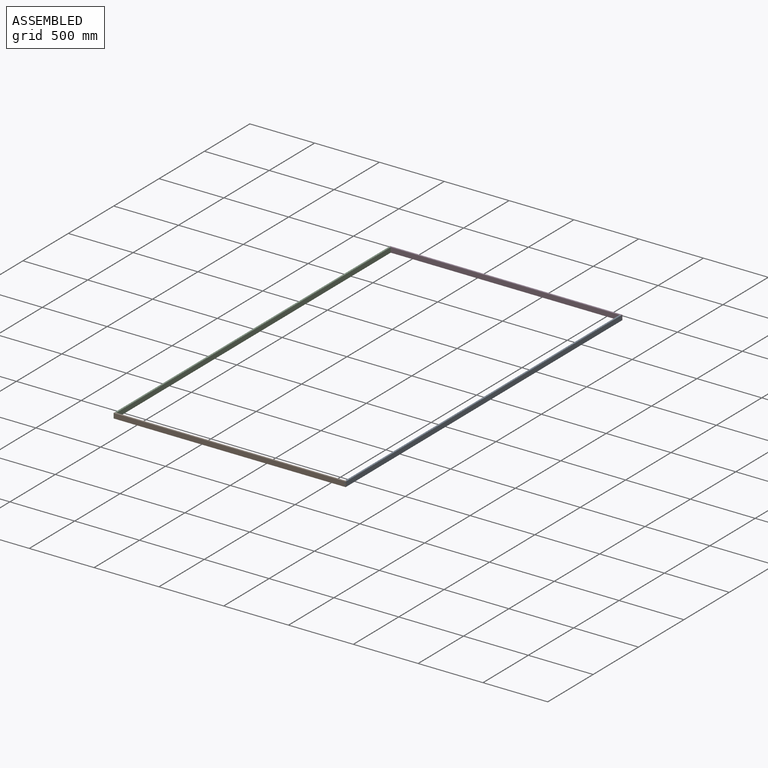
[diagram: assembled view]
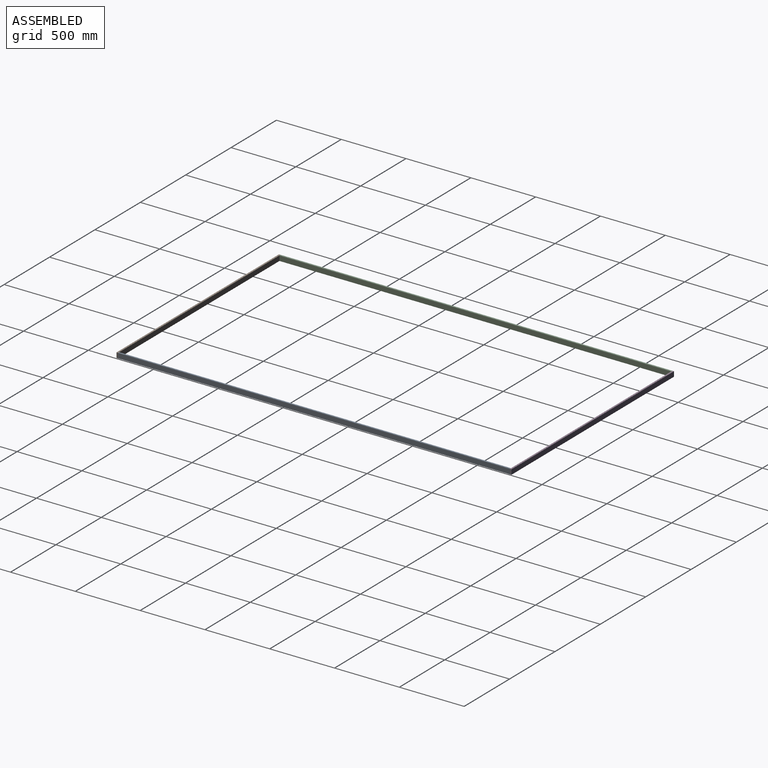
[diagram: assembled view, second angle]
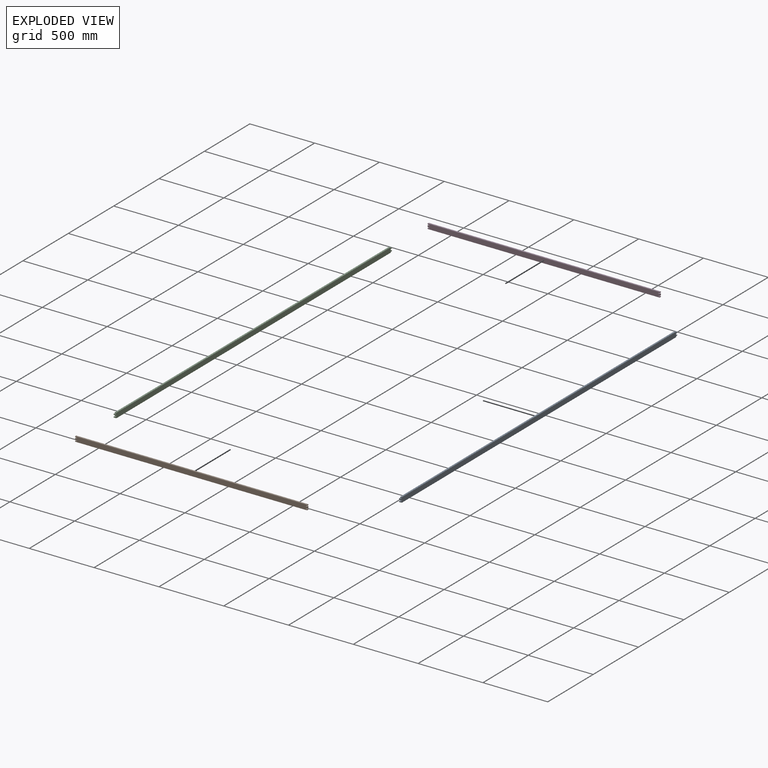
[diagram: exploded view]
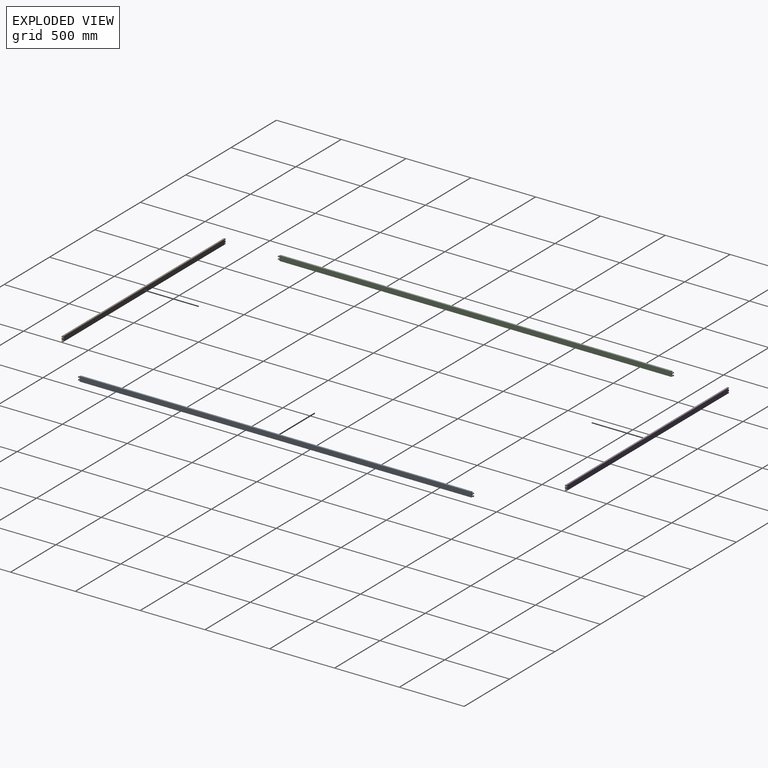
[diagram: exploded view, second angle]
ASSEMBLY  parts=4 mates=9
PART A: 22 faces, bbox 12.7x38.1x3048 mm
  f0: plane 3022.6x12.7mm, normal (0,-1,0), area 38387mm2, adj f6,f7,f8,f15
  f1: plane 3022.6x12.7mm, normal (0,1,0), area 38387mm2, adj f6,f7,f11,f17
  f2: plane 12.7x6.35mm, normal (0,0,1), area 80.6mm2, adj f6,f7,f12,f16
  f3: plane 12.7x6.35mm, normal (0,0,1), area 80.6mm2, adj f6,f7,f10,f14
  f4: plane 12.7x6.35mm, normal (0,0,-1), area 80.6mm2, adj f6,f7,f18,f21
  f5: plane 12.7x6.35mm, normal (0,0,-1), area 80.6mm2, adj f6,f7,f9,f20
  f6: plane 3048x38.1mm, normal (1,0,0), area 115483.6mm2, adj f0,f1,f2,f3,f4,f5,f8,f9
  f7: plane 3048x38.1mm, normal (-1,0,0), area 115483.6mm2, adj f0,f1,f2,f3,f4,f5,f8,f9
  f8: plane 12.7x6.35mm, normal (0,0,-1), area 80.6mm2, adj f0,f6,f7,f9
  f9: plane 12.7x12.7mm, normal (0,-1,0), area 161.3mm2, adj f5,f6,f7,f8
  f10: plane 12.7x12.7mm, normal (0,1,0), area 161.3mm2, adj f3,f6,f7,f11
  f11: plane 12.7x6.35mm, normal (0,0,1), area 80.6mm2, adj f1,f6,f7,f10
  f12: plane 12.7x12.7mm, normal (0,1,0), area 161.3mm2, adj f2,f6,f7,f13
  f13: plane 12.7x12.7mm, normal (0,0,1), area 161.3mm2, adj f6,f7,f12,f14
  f14: plane 12.7x12.7mm, normal (0,-1,0), area 161.3mm2, adj f3,f6,f7,f13
  f15: plane 12.7x6.35mm, normal (0,0,1), area 80.6mm2, adj f0,f6,f7,f16
  f16: plane 12.7x12.7mm, normal (0,-1,0), area 161.3mm2, adj f2,f6,f7,f15
  f17: plane 12.7x6.35mm, normal (0,0,-1), area 80.6mm2, adj f1,f6,f7,f18
  f18: plane 12.7x12.7mm, normal (0,1,0), area 161.3mm2, adj f4,f6,f7,f17
  f19: plane 12.7x12.7mm, normal (0,0,-1), area 161.3mm2, adj f6,f7,f20,f21
  f20: plane 12.7x12.7mm, normal (0,1,0), area 161.3mm2, adj f5,f6,f7,f19
  f21: plane 12.7x12.7mm, normal (0,-1,0), area 161.3mm2, adj f4,f6,f7,f19
PART B: 22 faces, bbox 38.1x1790.7x12.7 mm
  f0: plane 12.7x6.35mm, normal (0,-1,0), area 80.6mm2, adj f4,f5,f7,f16
  f1: plane 12.7x12.7mm, normal (0,-1,0), area 161.3mm2, adj f4,f5,f13,f17
  f2: plane 12.7x12.7mm, normal (0,1,0), area 161.3mm2, adj f4,f5,f12,f19
  f3: plane 12.7x6.35mm, normal (0,1,0), area 80.6mm2, adj f4,f5,f7,f10
  f4: plane 1790.7x38.1mm, normal (0,0,-1), area 67903.1mm2, adj f0,f1,f2,f3,f6,f7,f8,f9
  f5: plane 1790.7x38.1mm, normal (0,0,1), area 67903.1mm2, adj f0,f1,f2,f3,f6,f7,f8,f9
  f6: plane 1790.7x12.7mm, normal (1,0,0), area 22741.9mm2, adj f4,f5,f8,f9
  f7: plane 1790.7x12.7mm, normal (-1,0,0), area 22741.9mm2, adj f0,f3,f4,f5
  f8: plane 12.7x6.35mm, normal (0,-1,0), area 80.6mm2, adj f4,f5,f6,f14
  f9: plane 12.7x6.35mm, normal (0,1,0), area 80.6mm2, adj f4,f5,f6,f21
  f10: plane 12.7x12.7mm, normal (1,0,0), area 161.3mm2, adj f3,f4,f5,f11
  f11: plane 12.7x6.35mm, normal (0,1,0), area 80.6mm2, adj f4,f5,f10,f12
  f12: plane 12.7x12.7mm, normal (-1,0,0), area 161.3mm2, adj f2,f4,f5,f11
  f13: plane 12.7x12.7mm, normal (1,0,0), area 161.3mm2, adj f1,f4,f5,f15
  f14: plane 12.7x12.7mm, normal (-1,0,0), area 161.3mm2, adj f4,f5,f8,f15
  f15: plane 12.7x6.35mm, normal (0,-1,0), area 80.6mm2, adj f4,f5,f13,f14
  f16: plane 12.7x12.7mm, normal (1,0,0), area 161.3mm2, adj f0,f4,f5,f18
  f17: plane 12.7x12.7mm, normal (-1,0,0), area 161.3mm2, adj f1,f4,f5,f18
  f18: plane 12.7x6.35mm, normal (0,-1,0), area 80.6mm2, adj f4,f5,f16,f17
  f19: plane 12.7x12.7mm, normal (1,0,0), area 161.3mm2, adj f2,f4,f5,f20
  f20: plane 12.7x6.35mm, normal (0,1,0), area 80.6mm2, adj f4,f5,f19,f21
  f21: plane 12.7x12.7mm, normal (-1,0,0), area 161.3mm2, adj f4,f5,f9,f20
PART C: same geometry as A
PART D: same geometry as B
PLACE A rot(axis=(-1,0,0),90deg) t=(889,-6.35,0)mm
PLACE B rot(axis=(-0.58,-0.58,-0.58),120deg) t=(895.35,0,0)mm fixed
PLACE C rot(axis=(-1,0,0),90deg) t=(-889,-6.35,0)mm
PLACE D rot(axis=(0.58,0.58,-0.58),120deg) t=(895.35,3035.3,0)mm
MATE planar B.f5 <-> A.f8  axis (0,1,0) through (882.65,6.35,-6.35)mm
MATE planar C.f0 <-> B.f6  axis (0,0,1) through (-889,1517.65,19.05)mm
MATE planar C.f5 <-> B.f4  axis (0,-1,0) through (-882.65,-6.35,12.7)mm
MATE planar B.f2 <-> A.f6  axis (1,0,0) through (895.35,0,0)mm
MATE planar D.f2 <-> A.f6  axis (1,0,0) through (895.35,3035.3,0)mm
MATE planar D.f5 <-> A.f15  axis (0,-1,0) through (0,3028.95,0)mm
MATE planar D.f7 <-> A.f0  axis (0,0,1) through (895.35,3035.3,19.05)mm
MATE planar A.f9 <-> B.f21  axis (0,0,1) through (889,0,12.7)mm
MATE planar C.f5 <-> B.f4  axis (0,-1,0) through (-889,-6.35,9.53)mm
